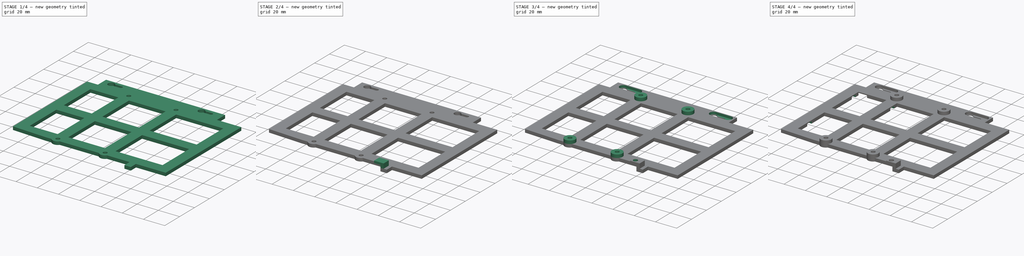
[diagram: build sequence overview — one tinted view per stage of 4, left to right]
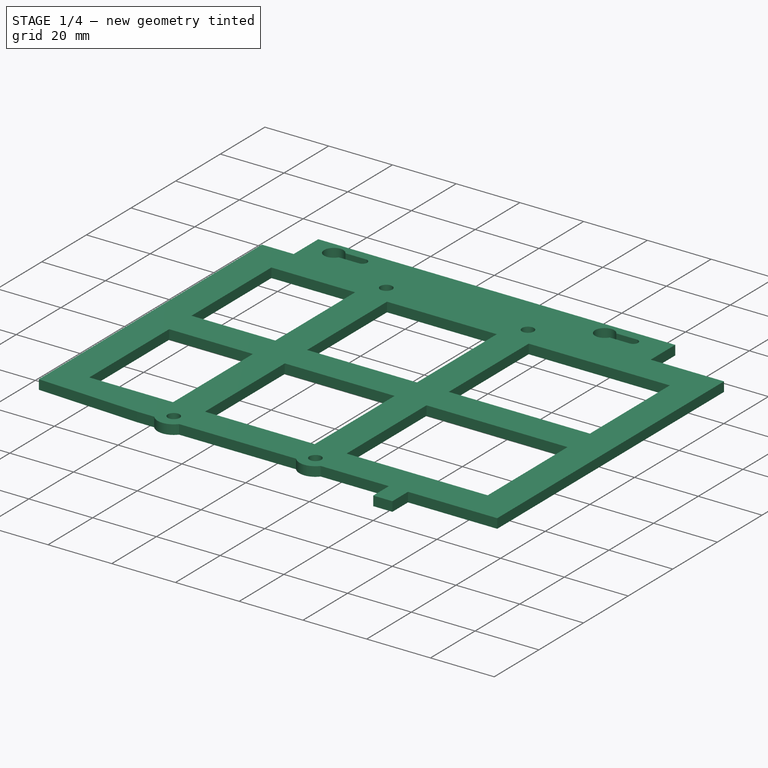
[diagram: stage 1 of 4 — iso view after this stage's code; geometry added in this stage tinted green]
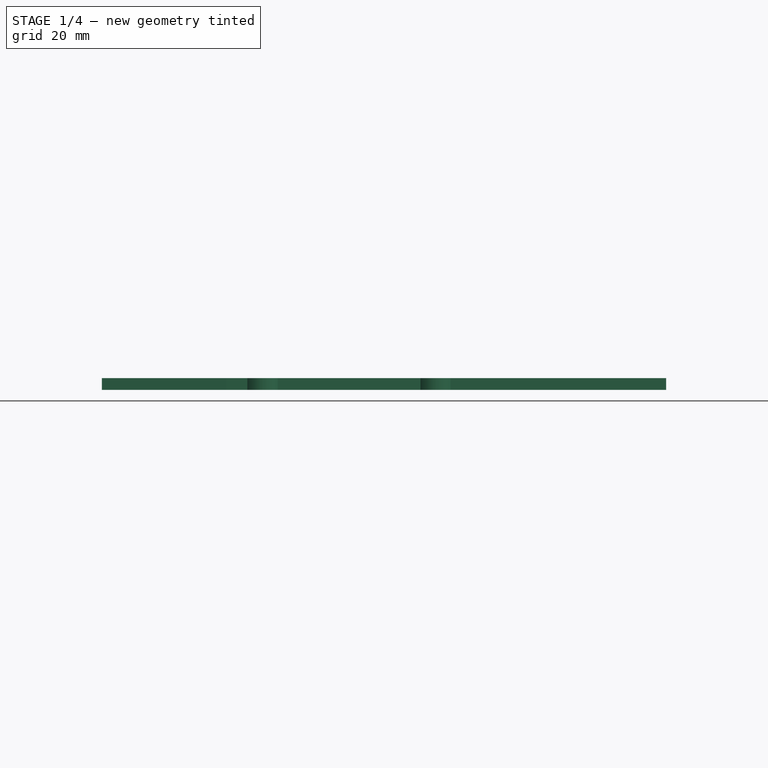
[diagram: stage 1 of 4 — front view after this stage's code; geometry added in this stage tinted green]
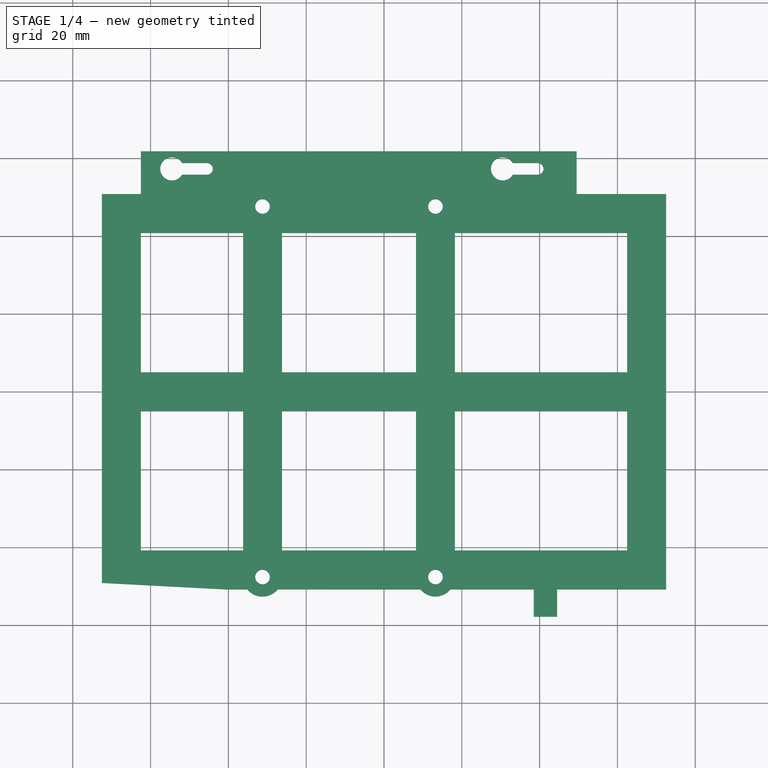
[diagram: stage 1 of 4 — top view after this stage's code; geometry added in this stage tinted green]
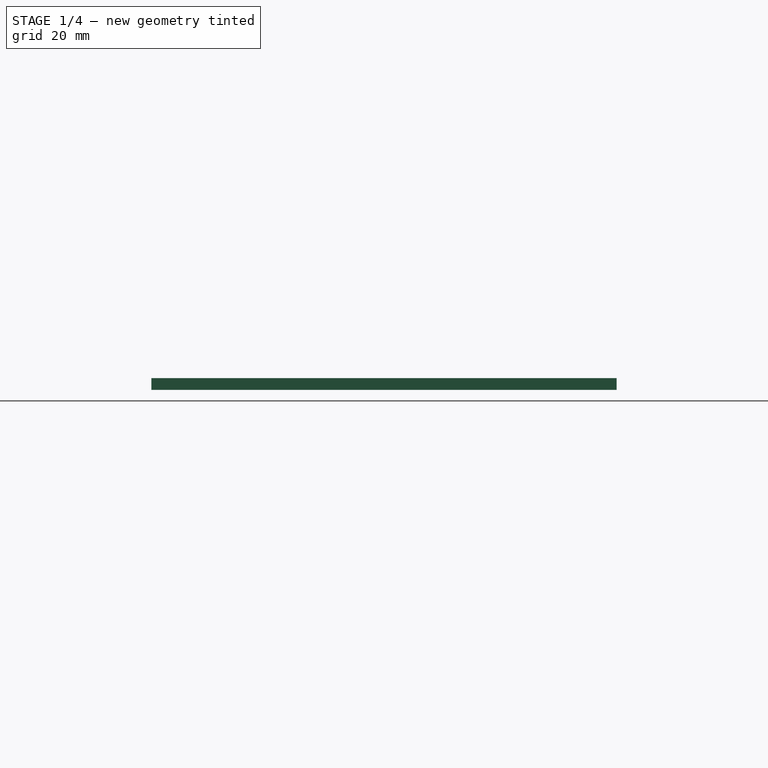
[diagram: stage 1 of 4 — right view after this stage's code; geometry added in this stage tinted green]
FCSTD DOCUMENT  (FreeCAD 0.20R29603 (Git))
Label: Wind Box DE200 Bracket
License: Creative Commons (CC BY-SA 4.0)
LicenseURL: https://creativecommons.org/licenses/by-sa/4.0/
objects: Sketcher::SketchObject×8, PartDesign::Pad×5, PartDesign::Pocket×3, PartDesign::Chamfer×1, PartDesign::Body×1
note: 27 computed .brp shape members not serialized (recipe doc carries the construction recipe); baked Part::Feature solids carry a one-line shape summary decoded from their .brp

FEATURE [Sketcher::SketchObject] Sketch  label="Tray base"
  FullyConstrained = true
  sketch-geometry (53):
    g0: LineSegment StartX=-72.5 StartY=50.8 StartZ=0 EndX=-72.5 EndY=-49.1252 EndZ=0
    g1: LineSegment StartX=72.5 StartY=-50.8 StartZ=0 EndX=72.5 EndY=50.8 EndZ=0
    g2: LineSegment StartX=72.5 StartY=50.8 StartZ=0 EndX=-72.5 EndY=50.8 EndZ=0
    g3: GeomPoint X=0 Y=0 Z=0
    g4: LineSegment StartX=-72.5 StartY=-49.1252 StartZ=0 EndX=-40.5439 EndY=-50.8 EndZ=0
    g5: LineSegment StartX=-40.5439 StartY=-50.8 StartZ=0 EndX=-35.1139 EndY=-50.8 EndZ=0
    g6: Circle CenterX=13.23 CenterY=47.62 CenterZ=0 NormalX=0 NormalY=0 NormalZ=1 AngleXU=0 Radius=1.875
    g7: Circle CenterX=13.23 CenterY=-47.62 CenterZ=0 NormalX=0 NormalY=0 NormalZ=1 AngleXU=0 Radius=1.875
    g8: Circle CenterX=-31.22 CenterY=-47.62 CenterZ=0 NormalX=0 NormalY=0 NormalZ=1 AngleXU=0 Radius=1.875
    g9: Circle CenterX=-31.22 CenterY=47.62 CenterZ=0 NormalX=0 NormalY=0 NormalZ=1 AngleXU=0 Radius=1.875
    g10: LineSegment StartX=-62.5 StartY=40.8 StartZ=0 EndX=-36.22 EndY=40.8 EndZ=0
    g11: LineSegment StartX=-36.22 StartY=40.8 StartZ=0 EndX=-36.22 EndY=5 EndZ=0
    g12: LineSegment StartX=-36.22 StartY=5 StartZ=0 EndX=-62.5 EndY=5 EndZ=0
    g13: LineSegment StartX=-62.5 StartY=5 StartZ=0 EndX=-62.5 EndY=40.8 EndZ=0
    g14: LineSegment StartX=-26.22 StartY=40.8 StartZ=0 EndX=8.23 EndY=40.8 EndZ=0
    g15: LineSegment StartX=8.23 StartY=40.8 StartZ=0 EndX=8.23 EndY=5 EndZ=0
    g16: LineSegment StartX=8.23 StartY=5 StartZ=0 EndX=-26.22 EndY=5 EndZ=0
    g17: LineSegment StartX=-26.22 StartY=5 StartZ=0 EndX=-26.22 EndY=40.8 EndZ=0
    g18: LineSegment StartX=18.23 StartY=40.8 StartZ=0 EndX=62.5 EndY=40.8 EndZ=0
    g19: LineSegment StartX=62.5 StartY=40.8 StartZ=0 EndX=62.5 EndY=5 EndZ=0
    g20: LineSegment StartX=62.5 StartY=5 StartZ=0 EndX=18.23 EndY=5 EndZ=0
    g21: LineSegment StartX=18.23 StartY=5 StartZ=0 EndX=18.23 EndY=40.8 EndZ=0
    g22: LineSegment StartX=18.23 StartY=-5 StartZ=0 EndX=62.5 EndY=-5 EndZ=0
    g23: LineSegment StartX=62.5 StartY=-5 StartZ=0 EndX=62.5 EndY=-40.8 EndZ=0
    g24: LineSegment StartX=62.5 StartY=-40.8 StartZ=0 EndX=18.23 EndY=-40.8 EndZ=0
    g25: LineSegment StartX=18.23 StartY=-40.8 StartZ=0 EndX=18.23 EndY=-5 EndZ=0
    g26: LineSegment StartX=-26.22 StartY=-5 StartZ=0 EndX=8.23 EndY=-5 EndZ=0
    g27: LineSegment StartX=8.23 StartY=-5 StartZ=0 EndX=8.23 EndY=-40.8 EndZ=0
    g28: LineSegment StartX=8.23 StartY=-40.8 StartZ=0 EndX=-26.22 EndY=-40.8 EndZ=0
    g29: LineSegment StartX=-26.22 StartY=-40.8 StartZ=0 EndX=-26.22 EndY=-5 EndZ=0
    g30: LineSegment StartX=-62.5 StartY=-5 StartZ=0 EndX=-36.22 EndY=-5 EndZ=0
    g31: LineSegment StartX=-36.22 StartY=-5 StartZ=0 EndX=-36.22 EndY=-40.8 EndZ=0
    g32: LineSegment StartX=-36.22 StartY=-40.8 StartZ=0 EndX=-62.5 EndY=-40.8 EndZ=0
    g33: LineSegment StartX=-62.5 StartY=-40.8 StartZ=0 EndX=-62.5 EndY=-5 EndZ=0
    g34: ArcOfCircle CenterX=-31.22 CenterY=-47.62 CenterZ=0 NormalX=0 NormalY=0 NormalZ=1 AngleXU=0 Radius=5.02738 StartAngle=3.82642 EndAngle=5.59764
    g35: LineSegment StartX=-72.5 StartY=50.8 StartZ=0 EndX=-62.5 EndY=50.8 EndZ=0
    g36: LineSegment StartX=49.5 StartY=50.8 StartZ=0 EndX=72.5 EndY=50.8 EndZ=0
    g37: ArcOfCircle CenterX=13.23 CenterY=-47.62 CenterZ=0 NormalX=0 NormalY=0 NormalZ=1 AngleXU=0 Radius=5 StartAngle=3.8309 EndAngle=5.59388
    g38: LineSegment StartX=17.0884 StartY=-50.8 StartZ=0 EndX=72.5 EndY=-50.8 EndZ=0
    g39: LineSegment StartX=-62.5 StartY=50.8 StartZ=0 EndX=-62.5 EndY=61.8 EndZ=0
    g40: LineSegment StartX=49.5 StartY=50.8 StartZ=0 EndX=49.5 EndY=61.8 EndZ=0
    g41: LineSegment StartX=49.5 StartY=61.8 StartZ=0 EndX=-62.5 EndY=61.8 EndZ=0
    g42: ArcOfCircle CenterX=-45.5 CenterY=57.3 CenterZ=0 NormalX=0 NormalY=0 NormalZ=1 AngleXU=0 Radius=1.5 StartAngle=4.71239 EndAngle=7.85398
    g43: ArcOfCircle CenterX=39.5 CenterY=57.3 CenterZ=0 NormalX=0 NormalY=0 NormalZ=1 AngleXU=0 Radius=1.5 StartAngle=4.71239 EndAngle=7.85398
    g44: ArcOfCircle CenterX=-54.5 CenterY=57.3 CenterZ=0 NormalX=0 NormalY=0 NormalZ=1 AngleXU=0 Radius=3 StartAngle=0.523599 EndAngle=5.75959
    g45: ArcOfCircle CenterX=30.5 CenterY=57.3 CenterZ=0 NormalX=0 NormalY=0 NormalZ=1 AngleXU=0 Radius=3 StartAngle=0.523599 EndAngle=5.75959
    g46: LineSegment StartX=-45.5 StartY=58.8 StartZ=0 EndX=-51.9019 EndY=58.8 EndZ=0
    g47: LineSegment StartX=-45.5 StartY=55.8 StartZ=0 EndX=-51.9019 EndY=55.8 EndZ=0
    g48: LineSegment StartX=39.5 StartY=58.8 StartZ=0 EndX=33.0981 EndY=58.8 EndZ=0
    g49: LineSegment StartX=39.5 StartY=55.8 StartZ=0 EndX=33.0981 EndY=55.8 EndZ=0
    g50: LineSegment StartX=-8.62845 StartY=-50.8 StartZ=0 EndX=9.37155 EndY=-50.8 EndZ=0
    g51: LineSegment StartX=-27.3284 StartY=-50.8028 StartZ=0 EndX=-16.6284 EndY=-50.8028 EndZ=0
    g52: LineSegment StartX=-16.6284 StartY=-50.8028 StartZ=0 EndX=-8.62845 EndY=-50.8 EndZ=0
  constraints (150):
    c: Coincident(g0,g4)
    c: Coincident(g38,g1)
    c: Coincident(g1,g2)
    c: Coincident(g2,g0)
    c: Horizontal(g2)
    c: Vertical(g0)
    c: Vertical(g1)
    c: Symmetric(g38,g0,g3)
    c: Coincident(g3,g-1)
    c: Distance(g1) = 101.6
    c: Distance(g2) = 145
    c: Coincident(g4,g5)
    c: Horizontal(g5)
    c: Distance(g4) = 32
    c: Angle(g4,g5) = 3.19395
    c: Equal(g9,g6)
    c: Equal(g9,g7)
    c: Equal(g9,g8)
    c: Diameter(g9) = 3.75  'Drive screw holes'
    c: Horizontal(g6,g9)
    c: Symmetric(g8,g9,g-1)
    c: Symmetric(g7,g6,g-1)
    c: DistanceX(g0,g8) = 41.28
    c: DistanceX(g8,g7) = 44.45
    c: DistanceY(g6,g1) = 3.18
    c: Coincident(g10,g11)
    c: Coincident(g11,g12)
    c: Coincident(g12,g13)
    c: Coincident(g13,g10)
    c: Horizontal(g10)
    c: Horizontal(g12)
    c: Vertical(g11)
    c: Vertical(g13)
    c: Coincident(g14,g15)
    c: Coincident(g15,g16)
    c: Coincident(g16,g17)
    c: Coincident(g17,g14)
    c: Horizontal(g14)
    c: Horizontal(g16)
    c: Vertical(g15)
    c: Vertical(g17)
    c: Coincident(g18,g19)
    c: Coincident(g19,g20)
    c: Coincident(g20,g21)
    c: Coincident(g21,g18)
    c: Horizontal(g18)
    c: Horizontal(g20)
    c: Vertical(g19)
    c: Vertical(g21)
    c: Coincident(g22,g23)
    c: Coincident(g23,g24)
    c: Coincident(g24,g25)
    c: Coincident(g25,g22)
    c: Horizontal(g22)
    c: Horizontal(g24)
    c: Vertical(g23)
    c: Vertical(g25)
    c: Coincident(g26,g27)
    c: Coincident(g27,g28)
    c: Coincident(g28,g29)
    c: Coincident(g29,g26)
    c: Horizontal(g26)
    c: Horizontal(g28)
    c: Vertical(g27)
    c: Vertical(g29)
    c: Coincident(g30,g31)
    c: Coincident(g31,g32)
    c: Coincident(g32,g33)
    c: Coincident(g33,g30)
    c: Horizontal(g30)
    c: Horizontal(g32)
    c: Vertical(g31)
    c: Vertical(g33)
    c: DistanceY(g18,g1) = 10
    c: DistanceY(g14,g1) = 10
    c: DistanceY(g10,g1) = 10
    c: DistanceX(g10,g9) = 5
    c: DistanceX(g9,g14) = 5
    c: DistanceX(g14,g6) = 5
    c: DistanceX(g6,g18) = 5
    c: DistanceX(g18,g1) = 10
    c: Symmetric(g22,g19,g-1)
    c: Symmetric(g26,g15,g-1)
    c: Symmetric(g11,g30,g-1)
    c: DistanceX(g0,g10) = 10
    c: DistanceX(g0,g30) = 10
    c: DistanceY(g-1,g19) = 5
    c: DistanceY(g-1,g15) = 5
    c: DistanceY(g-1,g11) = 5
    c: DistanceY(g1,g23) = 10
    c: DistanceX(g27,g24) = 10
    c: DistanceX(g31,g28) = 10
    c: DistanceY(g1,g27) = 10
    c: DistanceY(g1,g31) = 10
    c: Coincident(g34,g8)
    c: Coincident(g35,g0)
    c: Coincident(g36,g1)
    c: Coincident(g37,g7)
    c: Diameter(g37) = 10
    c: Coincident(g50,g37)
    c: Coincident(g38,g37)
    c: Coincident(g5,g34)
    c: Coincident(g51,g34)
    c: Horizontal(g38)
    c: DistanceY(g37,g27) = 10
    c: DistanceY(g5,g31) = 10
    c: Horizontal(g36)
    c: Horizontal(g35)
    c: DistanceX(g36,g36) = 23
    c: Coincident(g39,g35)
    c: Vertical(g39)
    c: Coincident(g40,g36)
    c: Vertical(g40)
    c: Coincident(g41,g40)
    c: Coincident(g41,g39)
    c: Horizontal(g41)
    c: DistanceY(g39,g39) = 11
    c: DistanceX(g41,g41) = 112
    c: DistanceX(g4,g5) = 5.43
    c: Equal(g43,g42)
    c: Diameter(g43) = 3
    c: Diameter(g44) = 6
    c: Diameter(g45) = 6
    c: DistanceX(g44,g42) = 9
    c: DistanceY(g35,g42) = 6.5
    c: DistanceY(g36,g43) = 6.5
    c: DistanceX(g45,g43) = 9
    c: Horizontal(g45,g43)
    c: Horizontal(g44,g42)
    c: DistanceX(g43,g1) = 33
    c: DistanceX(g42,g1) = 118
    c: Horizontal(g46)
    c: Horizontal(g47)
    c: Coincident(g44,g47)
    c: Coincident(g44,g46)
    c: Tangent(g42,g46) = -1.5708
    c: Tangent(g42,g47) = 1.5708
    c: Horizontal(g48)
    c: Horizontal(g49)
    c: Coincident(g45,g49)
    c: Coincident(g45,g48)
    c: Tangent(g43,g48) = -1.5708
    c: Tangent(g43,g49) = 1.5708
    c: Horizontal(g50)
    c: Horizontal(g51)
    c: DistanceX(g50,g50) = 18
    c: Coincident(g52,g51)
    c: Coincident(g52,g50)
    c: DistanceX(g52,g52) = 8
    c: DistanceX(g51,g51) = 10.7
FEATURE [PartDesign::Pad] Pad
  Direction = (0,0,1)
  Length = 3
  Length2 = 10
  Profile = -> Sketch
  ReferenceAxis = -> Sketch [N_Axis]
  Type = 0
FEATURE [Sketcher::SketchObject] Sketch001  label="Lockdown tab base"
  ExternalGeometry = -> [Pad]
  FullyConstrained = true
  MapMode = 5
  Placement = pos=(0,-50.8,0) rot=(1,0,0;1.5708rad)
  Support = -> [Pad]
  sketch-geometry (4):
    g0: LineSegment StartX=44.5 StartY=3 StartZ=0 EndX=44.5 EndY=0 EndZ=0
    g1: LineSegment StartX=38.5 StartY=3 StartZ=0 EndX=38.5 EndY=0 EndZ=0
    g2: LineSegment StartX=38.5 StartY=3 StartZ=0 EndX=44.5 EndY=3 EndZ=0
    g3: LineSegment StartX=44.5 StartY=0 StartZ=0 EndX=38.5 EndY=0 EndZ=0
  constraints (12):
    c: PointOnObject(g0,g-3)
    c: PointOnObject(g0,g-6)
    c: Vertical(g0)
    c: PointOnObject(g1,g-3)
    c: PointOnObject(g1,g-6)
    c: Vertical(g1)
    c: DistanceX(g0,g-4) = 28
    c: DistanceX(g1,g0) = 6
    c: Coincident(g2,g1)
    c: Coincident(g2,g0)
    c: Coincident(g3,g0)
    c: Coincident(g3,g1)
FEATURE [PartDesign::Pad] Pad001
  BaseFeature = -> Pad
  Direction = (0,-1,2e-16)
  Length = 7
  Length2 = 10
  Profile = -> Sketch001
  ReferenceAxis = -> Sketch001 [N_Axis]
  Type = 0
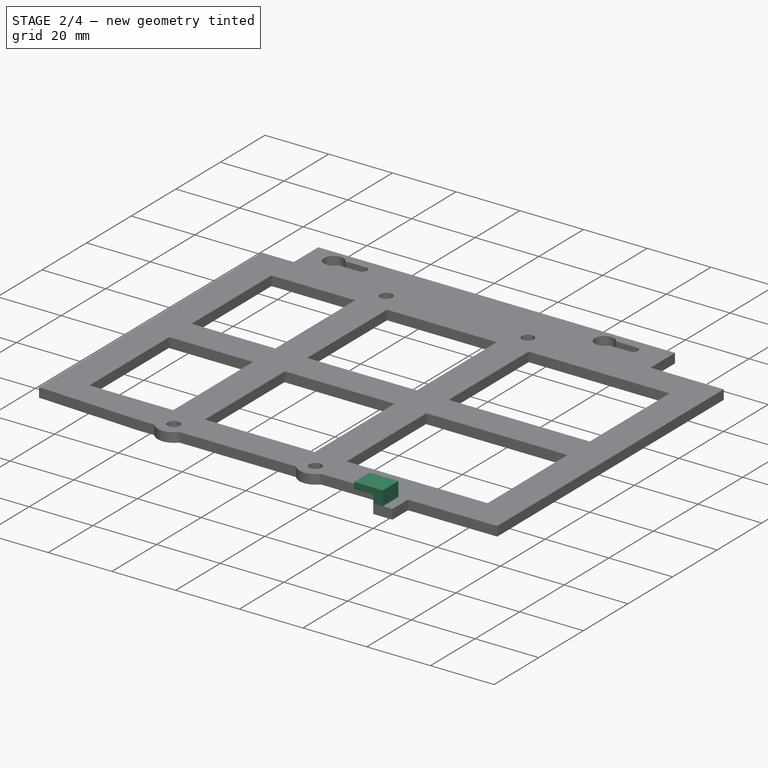
[diagram: stage 2 of 4 — iso view after this stage's code; geometry added in this stage tinted green]
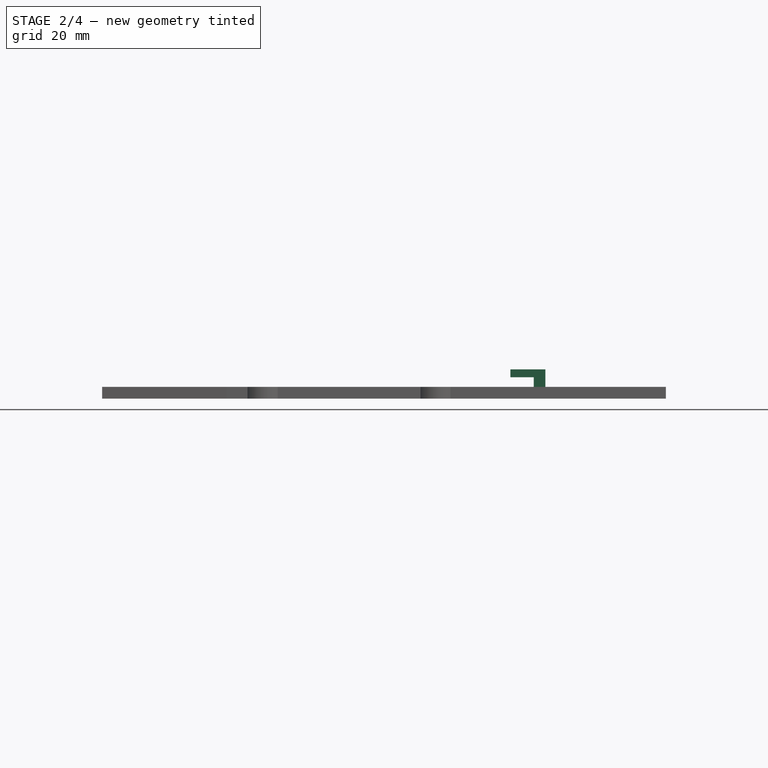
[diagram: stage 2 of 4 — front view after this stage's code; geometry added in this stage tinted green]
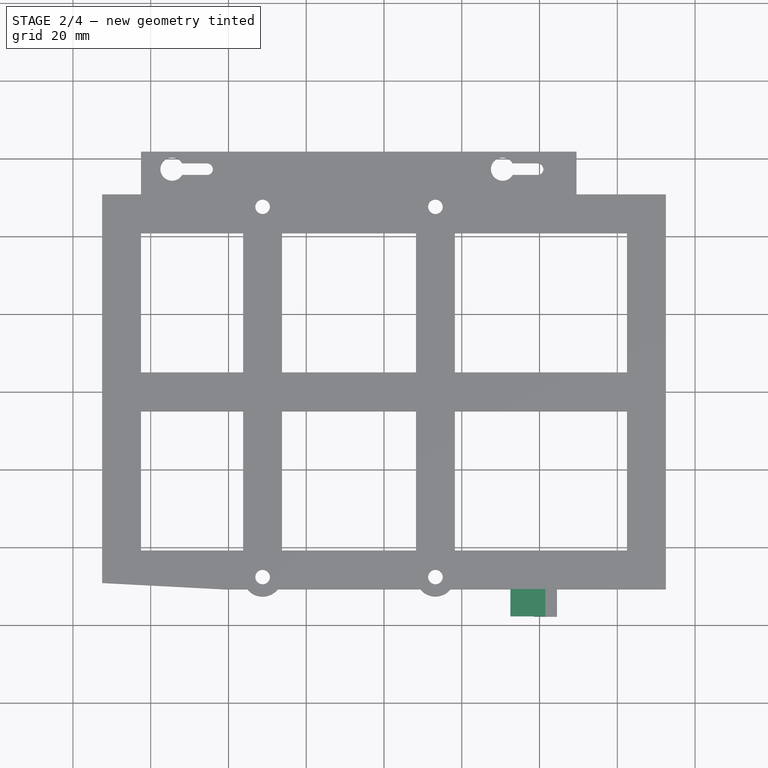
[diagram: stage 2 of 4 — top view after this stage's code; geometry added in this stage tinted green]
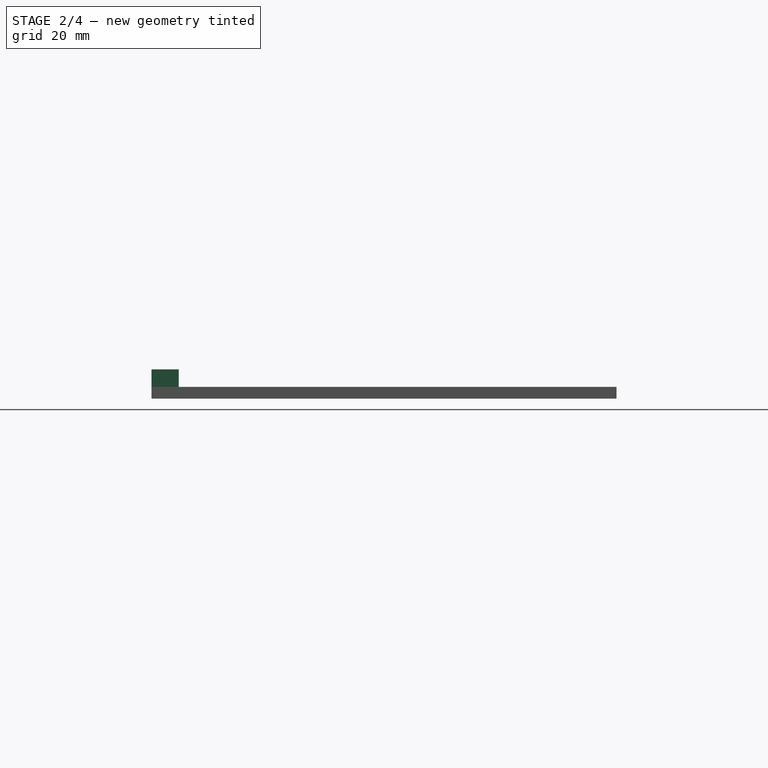
[diagram: stage 2 of 4 — right view after this stage's code; geometry added in this stage tinted green]
FEATURE [Sketcher::SketchObject] Sketch002  label="Lockdown tab upright"
  ExternalGeometry = -> [Pad001]
  FullyConstrained = true
  MapMode = 5
  Placement = pos=(0,7e-16,3) rot=(0,0,1;0rad)
  Support = -> [Pad001]
  sketch-geometry (4):
    g0: LineSegment StartX=38.5 StartY=-50.8 StartZ=0 EndX=41.5 EndY=-50.8 EndZ=0
    g1: LineSegment StartX=41.5 StartY=-50.8 StartZ=0 EndX=41.5 EndY=-57.8 EndZ=0
    g2: LineSegment StartX=41.5 StartY=-57.8 StartZ=0 EndX=38.5 EndY=-57.8 EndZ=0
    g3: LineSegment StartX=38.5 StartY=-57.8 StartZ=0 EndX=38.5 EndY=-50.8 EndZ=0
  constraints (11):
    c: Coincident(g0,g1)
    c: Coincident(g1,g2)
    c: Coincident(g2,g3)
    c: Coincident(g3,g0)
    c: Horizontal(g0)
    c: Horizontal(g2)
    c: Vertical(g1)
    c: Vertical(g3)
    c: Coincident(g0,g-3)
    c: DistanceX(g0,g0) = 3
    c: DistanceY(g1,g0) = 7
FEATURE [PartDesign::Pad] Pad002
  BaseFeature = -> Pad001
  Direction = (0,2e-16,1)
  Length = 4.5
  Length2 = 10
  Profile = -> Sketch002
  ReferenceAxis = -> Sketch002 [N_Axis]
  Type = 0
FEATURE [Sketcher::SketchObject] Sketch003  label="Lockdown tab top"
  ExternalGeometry = -> [Pad002]
  FullyConstrained = true
  MapMode = 5
  Placement = pos=(38.5,0,0) rot=(0.57735,-0.57735,-0.57735;2.0944rad)
  Support = -> [Pad002]
  sketch-geometry (4):
    g0: LineSegment StartX=50.8 StartY=7.5 StartZ=0 EndX=57.8 EndY=7.5 EndZ=0
    g1: LineSegment StartX=57.8 StartY=7.5 StartZ=0 EndX=57.8 EndY=5.5 EndZ=0
    g2: LineSegment StartX=57.8 StartY=5.5 StartZ=0 EndX=50.8 EndY=5.5 EndZ=0
    g3: LineSegment StartX=50.8 StartY=5.5 StartZ=0 EndX=50.8 EndY=7.5 EndZ=0
  constraints (11):
    c: Coincident(g0,g1)
    c: Coincident(g1,g2)
    c: Coincident(g2,g3)
    c: Coincident(g3,g0)
    c: Horizontal(g0)
    c: Horizontal(g2)
    c: Vertical(g1)
    c: Vertical(g3)
    c: Coincident(g0,g-3)
    c: DistanceX(g2,g1) = 7
    c: DistanceY(g1,g0) = 2
FEATURE [PartDesign::Pad] Pad003
  BaseFeature = -> Pad002
  Direction = (-1,0,0)
  Length = 6
  Length2 = 10
  Profile = -> Sketch003
  ReferenceAxis = -> Sketch003 [N_Axis]
  Type = 0
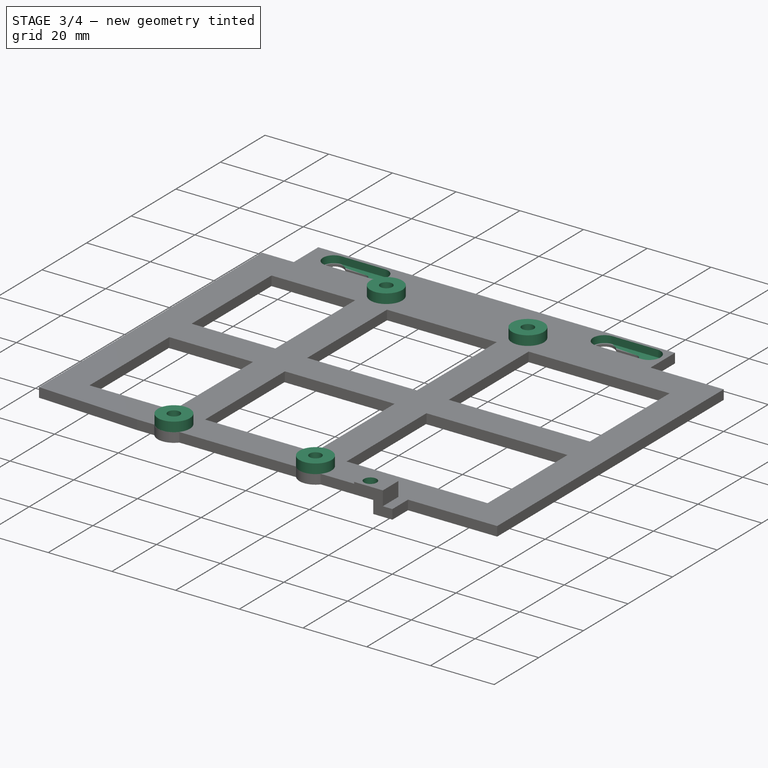
[diagram: stage 3 of 4 — iso view after this stage's code; geometry added in this stage tinted green]
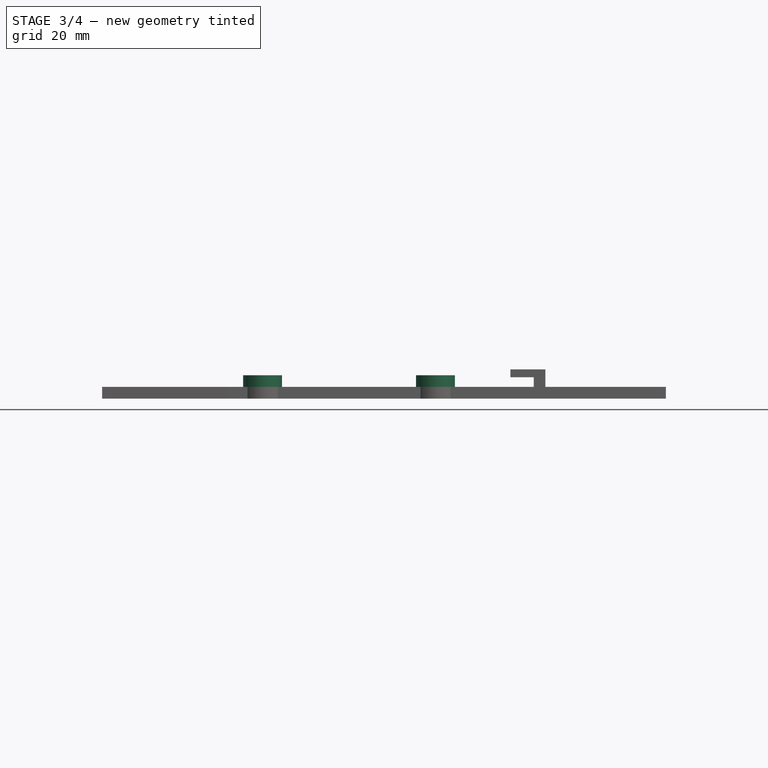
[diagram: stage 3 of 4 — front view after this stage's code; geometry added in this stage tinted green]
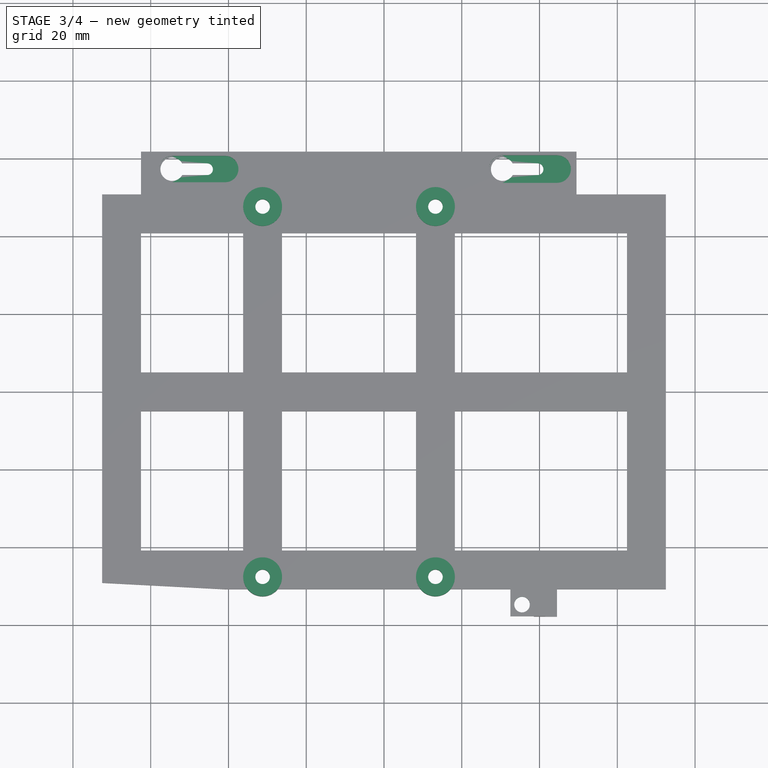
[diagram: stage 3 of 4 — top view after this stage's code; geometry added in this stage tinted green]
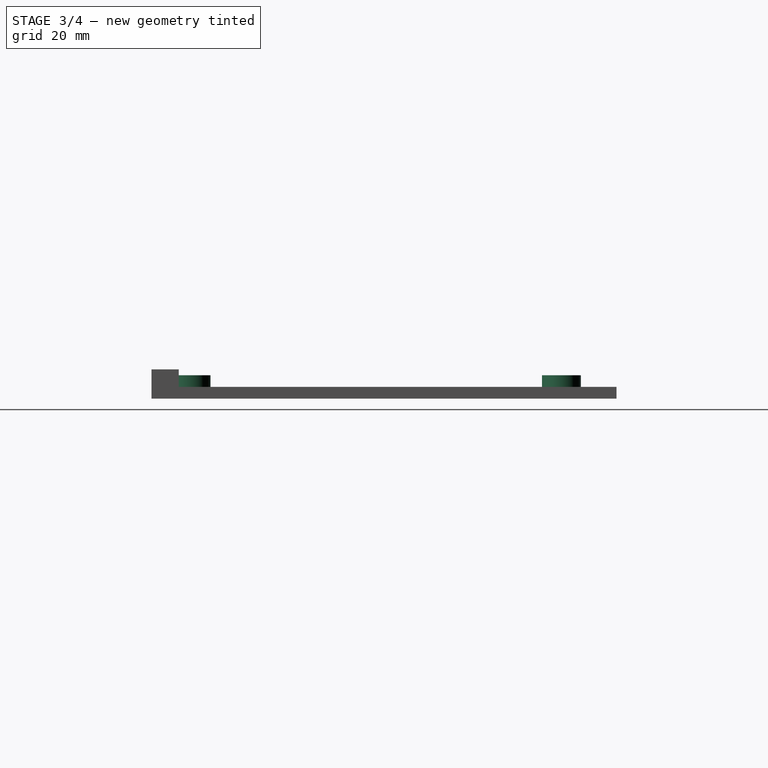
[diagram: stage 3 of 4 — right view after this stage's code; geometry added in this stage tinted green]
FEATURE [Sketcher::SketchObject] Sketch004  label="Lockdown tab screw hole"
  ExternalGeometry = -> [Pad003]
  FullyConstrained = true
  MapMode = 5
  Placement = pos=(0,0,7.5) rot=(0,0,1;0rad)
  Support = -> [Pad003]
  sketch-geometry (1):
    g0: Circle CenterX=35.5 CenterY=-54.8 CenterZ=0 NormalX=0 NormalY=0 NormalZ=1 AngleXU=0 Radius=2
  constraints (3):
    c: Diameter(g0) = 4
    c: DistanceY(g0,g-4) = 4
    c: DistanceX(g-3,g0) = 3
FEATURE [PartDesign::Pocket] Pocket
  BaseFeature = -> Pad003
  Direction = (0,0,-1)
  Length = 5
  Length2 = 5
  Profile = -> Sketch004
  ReferenceAxis = -> Sketch004 [N_Axis]
  Type = 0
FEATURE [Sketcher::SketchObject] Sketch005  label="Drive screw risers"
  ExternalGeometry = -> [Pocket]
  FullyConstrained = true
  MapMode = 5
  Support = -> [XY_Plane]
  sketch-geometry (8):
    g0: Circle CenterX=-31.22 CenterY=47.62 CenterZ=0 NormalX=0 NormalY=0 NormalZ=1 AngleXU=0 Radius=1.875
    g1: Circle CenterX=13.23 CenterY=47.62 CenterZ=0 NormalX=0 NormalY=0 NormalZ=1 AngleXU=0 Radius=1.875
    g2: Circle CenterX=-31.22 CenterY=-47.62 CenterZ=0 NormalX=0 NormalY=0 NormalZ=1 AngleXU=0 Radius=1.875
    g3: Circle CenterX=13.23 CenterY=-47.62 CenterZ=0 NormalX=0 NormalY=0 NormalZ=1 AngleXU=0 Radius=1.875
    g4: Circle CenterX=-31.22 CenterY=47.62 CenterZ=0 NormalX=0 NormalY=0 NormalZ=1 AngleXU=0 Radius=5
    g5: Circle CenterX=13.23 CenterY=47.62 CenterZ=0 NormalX=0 NormalY=0 NormalZ=1 AngleXU=0 Radius=5
    g6: Circle CenterX=-31.22 CenterY=-47.62 CenterZ=0 NormalX=0 NormalY=0 NormalZ=1 AngleXU=0 Radius=5
    g7: Circle CenterX=13.23 CenterY=-47.62 CenterZ=0 NormalX=0 NormalY=0 NormalZ=1 AngleXU=0 Radius=5
  constraints (16):
    c: Coincident(g0,g-3)
    c: Coincident(g1,g-4)
    c: Coincident(g2,g-5)
    c: Coincident(g3,g-6)
    c: Coincident(g4,g0)
    c: Coincident(g5,g1)
    c: Coincident(g6,g2)
    c: Coincident(g7,g3)
    c: Equal(g0,g-3)
    c: Equal(g1,g-4)
    c: Equal(g3,g-6)
    c: Equal(g2,g-5)
    c: Diameter(g4) = 10
    c: Diameter(g5) = 10
    c: Diameter(g6) = 10
    c: Diameter(g7) = 10
FEATURE [PartDesign::Pad] Pad004
  BaseFeature = -> Pocket
  Direction = (0,0,1)
  Length = 6
  Length2 = 10
  Profile = -> Sketch005
  ReferenceAxis = -> Sketch005 [N_Axis]
  Type = 0
FEATURE [Sketcher::SketchObject] Sketch006  label="Slot pockets"
  ExternalGeometry = -> [Sketch]
  FullyConstrained = true
  MapMode = 5
  Placement = pos=(0,0,3) rot=(0,0,1;0rad)
  Support = -> [Pad004]
  sketch-geometry (8):
    g0: ArcOfCircle CenterX=-54.5 CenterY=57.3 CenterZ=0 NormalX=0 NormalY=0 NormalZ=1 AngleXU=0 Radius=3.38 StartAngle=1.5708 EndAngle=4.71239
    g1: ArcOfCircle CenterX=-40.82 CenterY=57.3 CenterZ=0 NormalX=0 NormalY=0 NormalZ=1 AngleXU=0 Radius=3.38 StartAngle=4.71239 EndAngle=7.85398
    g2: LineSegment StartX=-54.5 StartY=53.92 StartZ=0 EndX=-40.82 EndY=53.92 EndZ=0
    g3: LineSegment StartX=-40.82 StartY=60.68 StartZ=0 EndX=-54.5 EndY=60.68 EndZ=0
    g4: ArcOfCircle CenterX=30.5 CenterY=57.3 CenterZ=0 NormalX=0 NormalY=0 NormalZ=1 AngleXU=0 Radius=3.54 StartAngle=1.5708 EndAngle=4.71239
    g5: ArcOfCircle CenterX=44.52 CenterY=57.3 CenterZ=0 NormalX=0 NormalY=0 NormalZ=1 AngleXU=0 Radius=3.54 StartAngle=4.71239 EndAngle=7.85398
    g6: LineSegment StartX=30.5 StartY=53.76 StartZ=0 EndX=44.52 EndY=53.76 EndZ=0
    g7: LineSegment StartX=44.52 StartY=60.84 StartZ=0 EndX=30.5 EndY=60.84 EndZ=0
  constraints (18):
    c: Tangent(g0,g2) = -1.5708
    c: Tangent(g2,g1) = -1.5708
    c: Tangent(g1,g3) = -1.5708
    c: Tangent(g3,g0) = -1.5708
    c: Equal(g0,g1)
    c: Coincident(g0,g-3)
    c: Horizontal(g2)
    c: Tangent(g4,g6) = -1.5708
    c: Tangent(g6,g5) = -1.5708
    c: Tangent(g5,g7) = -1.5708
    c: Tangent(g7,g4) = -1.5708
    c: Equal(g4,g5)
    c: Coincident(g4,g-4)
    c: Horizontal(g6)
    c: DistanceY(g0,g0) = 3.38
    c: DistanceY(g4,g4) = 3.54
    c: DistanceX(g0,g1) = 13.68
    c: DistanceX(g4,g5) = 14.02
FEATURE [PartDesign::Pocket] Pocket001
  BaseFeature = -> Pad004
  Direction = (0,0,-1)
  Length = 2.25
  Length2 = 5
  Profile = -> Sketch006
  ReferenceAxis = -> Sketch006 [N_Axis]
  Type = 0
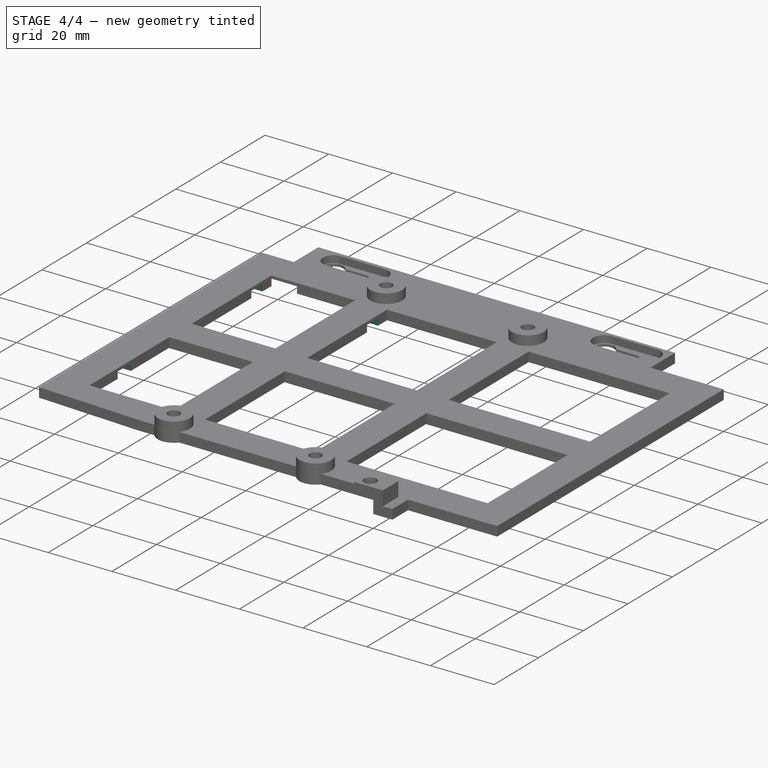
[diagram: stage 4 of 4 — iso view after this stage's code; geometry added in this stage tinted green]
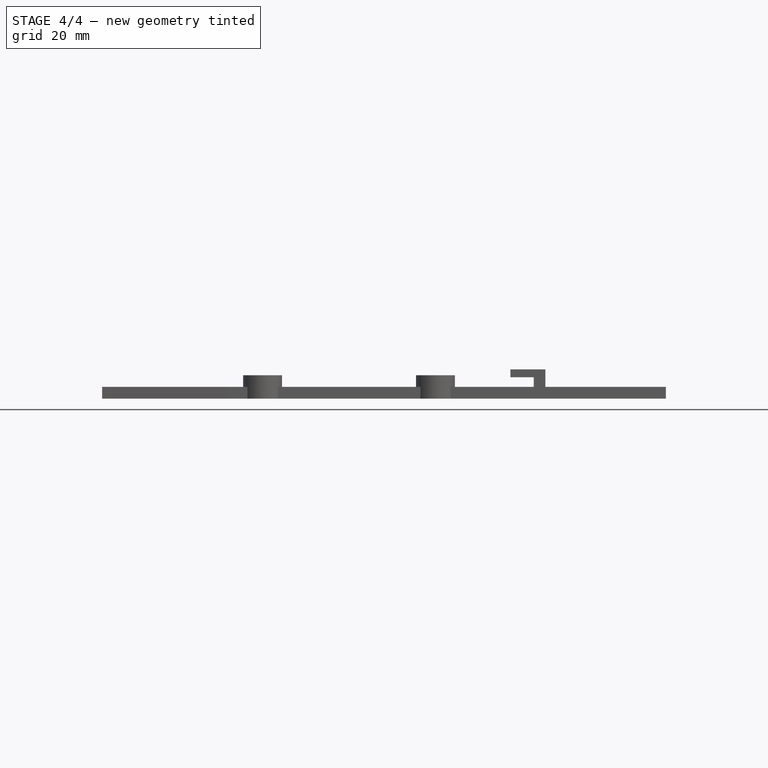
[diagram: stage 4 of 4 — front view after this stage's code; geometry added in this stage tinted green]
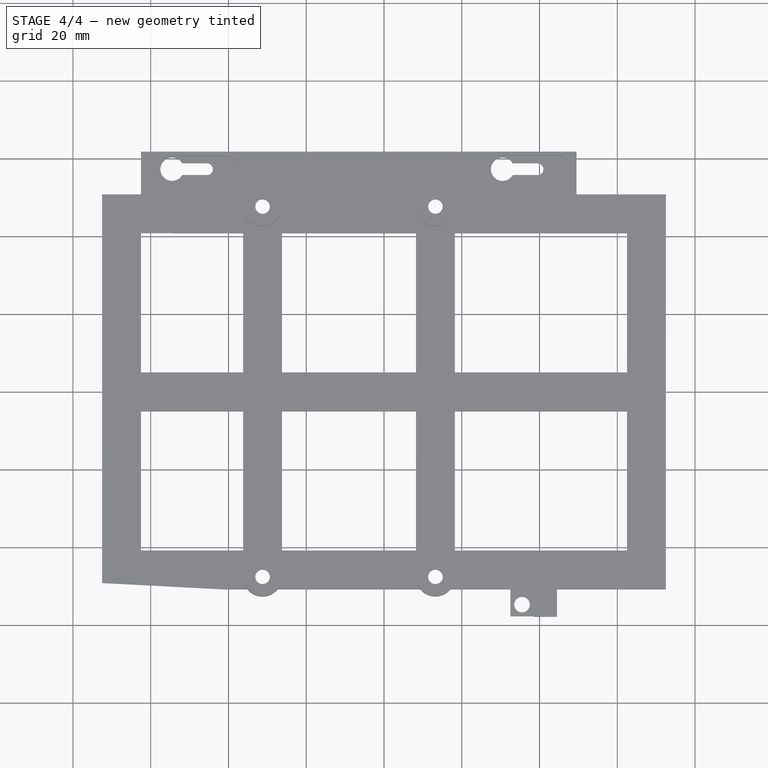
[diagram: stage 4 of 4 — top view after this stage's code; geometry added in this stage tinted green]
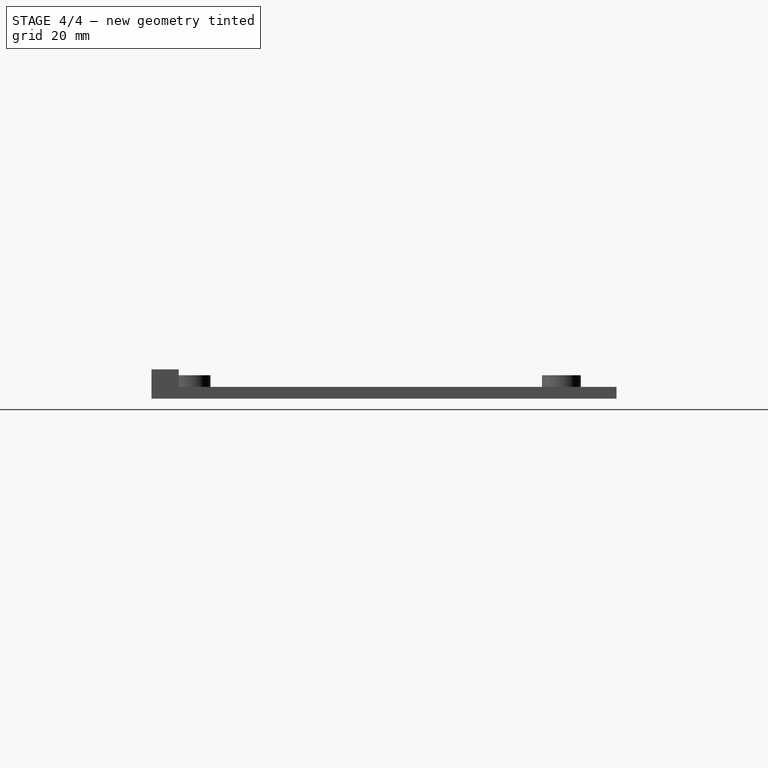
[diagram: stage 4 of 4 — right view after this stage's code; geometry added in this stage tinted green]
FEATURE [PartDesign::Chamfer] Chamfer
  Angle = 45
  Base = -> Pocket001 [Face74,Face73,Face76,Face77]
  BaseFeature = -> Pocket001
  ChamferType = 0
  FlipDirection = false
  Size = 2.5
  Size2 = 1
  SupportTransform = false
  UseAllEdges = false
FEATURE [Sketcher::SketchObject] Sketch007  label="Underbelly tunnels"
  ExternalGeometry = -> [Pad]
  FullyConstrained = true
  MapMode = 5
  Placement = pos=(0,0,0) rot=(1,0,0;3.14159rad)
  Support = -> [Pad]
  sketch-geometry (12):
    g0: LineSegment StartX=-72.5 StartY=-31.8 StartZ=0 EndX=-26.22 EndY=-31.8 EndZ=0
    g1: LineSegment StartX=-26.22 StartY=-31.8 StartZ=0 EndX=-26.22 EndY=-36.8 EndZ=0
    g2: LineSegment StartX=-26.22 StartY=-36.8 StartZ=0 EndX=-72.5 EndY=-36.8 EndZ=0
    g3: LineSegment StartX=-72.5 StartY=-36.8 StartZ=0 EndX=-72.5 EndY=-31.8 EndZ=0
    g4: LineSegment StartX=-72.5 StartY=-47.8 StartZ=0 EndX=-54.5 EndY=-47.8 EndZ=0
    g5: LineSegment StartX=-54.5 StartY=-47.8 StartZ=0 EndX=-54.5 EndY=-40.8 EndZ=0
    g6: LineSegment StartX=-54.5 StartY=-40.8 StartZ=0 EndX=-72.5 EndY=-40.8 EndZ=0
    g7: LineSegment StartX=-72.5 StartY=-40.8 StartZ=0 EndX=-72.5 EndY=-47.8 EndZ=0
    g8: LineSegment StartX=-72.5 StartY=28.2 StartZ=0 EndX=-62.5 EndY=28.2 EndZ=0
    g9: LineSegment StartX=-62.5 StartY=28.2 StartZ=0 EndX=-62.5 EndY=22.2 EndZ=0
    g10: LineSegment StartX=-62.5 StartY=22.2 StartZ=0 EndX=-72.5 EndY=22.2 EndZ=0
    g11: LineSegment StartX=-72.5 StartY=22.2 StartZ=0 EndX=-72.5 EndY=28.2 EndZ=0
  constraints (36):
    c: Coincident(g0,g1)
    c: Coincident(g1,g2)
    c: Coincident(g2,g3)
    c: Coincident(g3,g0)
    c: Horizontal(g0)
    c: Horizontal(g2)
    c: Vertical(g1)
    c: Vertical(g3)
    c: PointOnObject(g0,g-9)
    c: PointOnObject(g1,g-10)
    c: DistanceY(g-9,g0) = 19
    c: DistanceY(g-9,g2) = 14
    c: Coincident(g4,g5)
    c: Coincident(g5,g6)
    c: Coincident(g6,g7)
    c: Coincident(g7,g4)
    c: Horizontal(g4)
    c: Horizontal(g6)
    c: Vertical(g5)
    c: Vertical(g7)
    c: PointOnObject(g4,g-9)
    c: DistanceY(g-9,g4) = 3
    c: DistanceY(g-9,g6) = 10
    c: DistanceX(g4,g4) = 18
    c: Coincident(g8,g9)
    c: Coincident(g9,g10)
    c: Coincident(g10,g11)
    c: Coincident(g11,g8)
    c: Horizontal(g8)
    c: Horizontal(g10)
    c: Vertical(g9)
    c: Vertical(g11)
    c: PointOnObject(g8,g-9)
    c: PointOnObject(g9,g-12)
    c: DistanceY(g-9,g10) = 73
    c: DistanceY(g-9,g8) = 79
FEATURE [PartDesign::Pocket] Pocket002
  BaseFeature = -> Chamfer
  Direction = (0,0,1)
  Length = 2.1
  Length2 = 5
  Profile = -> Sketch007
  ReferenceAxis = -> Sketch007 [N_Axis]
  Type = 0
FEATURE [PartDesign::Body] Body
  Group = -> [Sketch,Pad,Sketch001,Pad001,Sketch002,Pad002,Sketch003,Pad003,Sketch004,Pocket,Sketch005,Pad004,Sketch006,Pocket001,Chamfer,Sketch007,Pocket002]
  Origin = -> Origin
  Tip = -> Pocket002
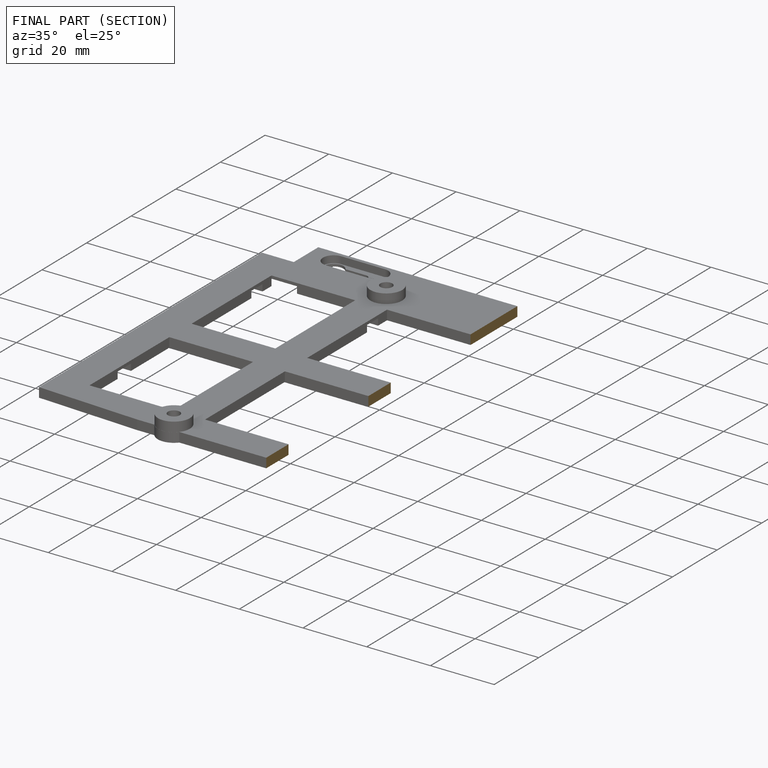
[diagram: finished part — half-section view (interior)]
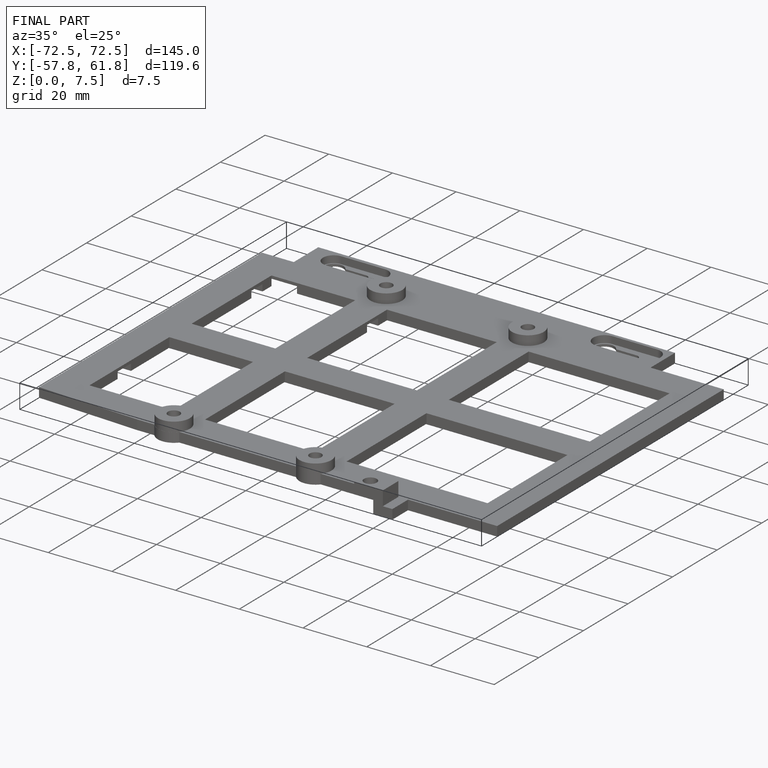
[diagram: finished part — iso view with bounding-box wireframe]
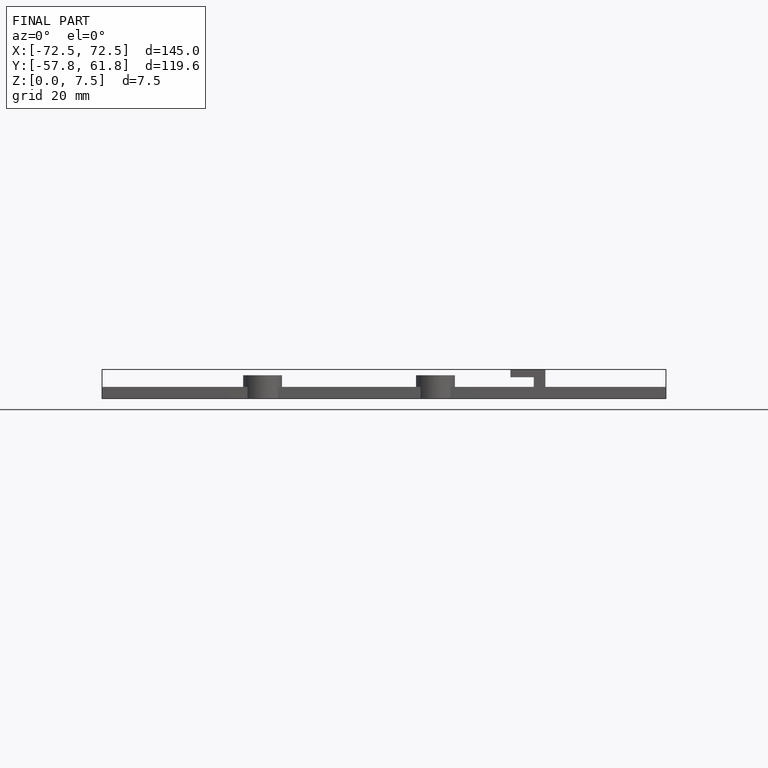
[diagram: finished part — front view with bounding-box wireframe]
